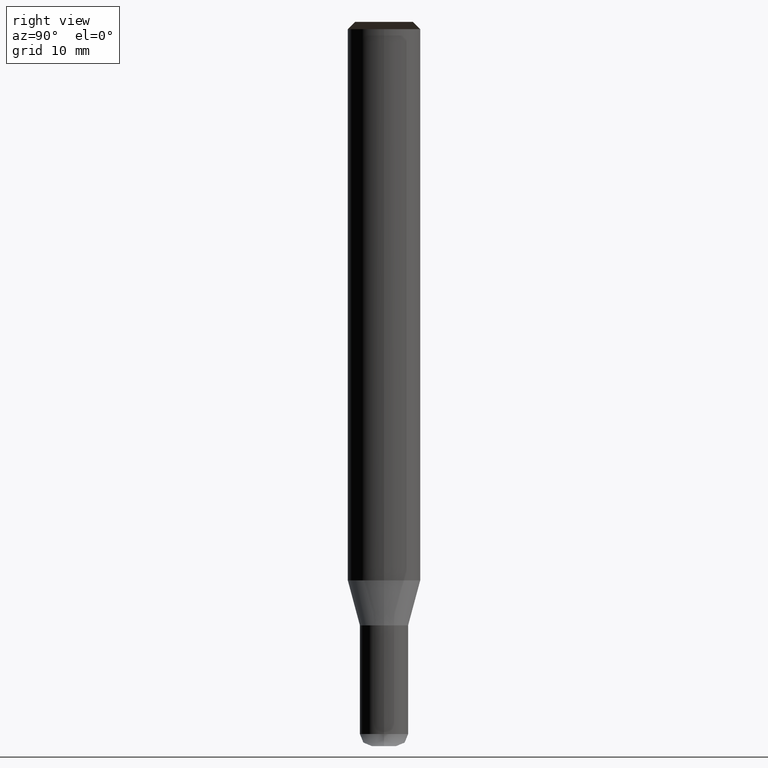
[diagram: clean part render]
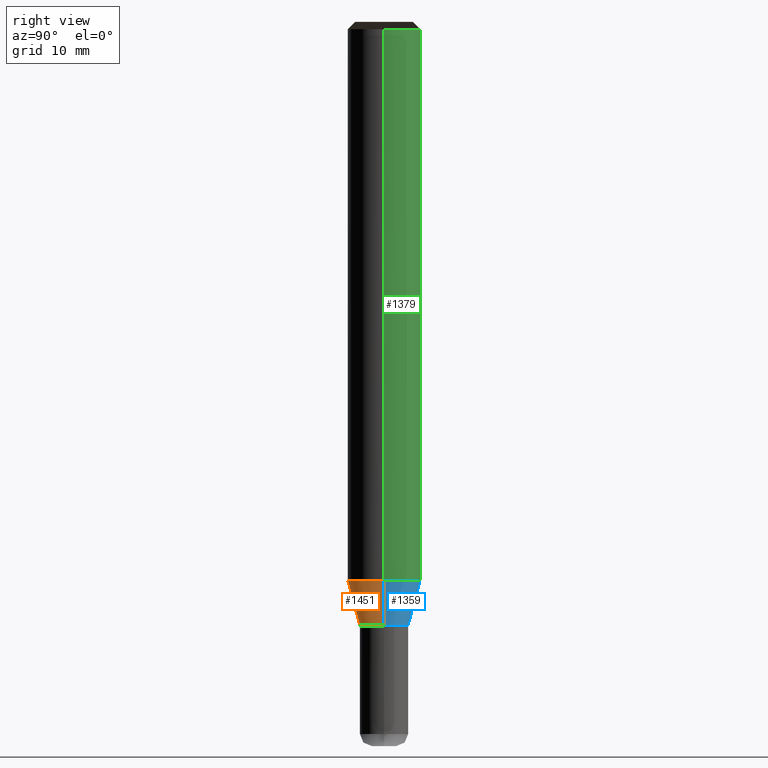
[diagram: same view with three faces highlighted in distinct colors, each labeled with its STEP entity id]
A machine part, right view with three faces highlighted in distinct colors.
Their STEP definitions:

[orange] entity #1451 — the highlighted face is a freeform B-spline surface patch.
#1118=CARTESIAN_POINT('',(2.0,0.0,-3.732050807569));
#1122=CARTESIAN_POINT('',(-2.0,0.0,-3.732050807569));
#1139=CARTESIAN_POINT('',(-2.0,-2.0,-3.732050807569));
#1140=CARTESIAN_POINT('',(0.0,-2.0,-3.732050807569));
#1141=CARTESIAN_POINT('',(2.0,-2.0,-3.732050807569));
#1142=CARTESIAN_POINT('',(3.0,0.0,0.0));
#1146=CARTESIAN_POINT('',(-3.0,0.0,0.0));
#1158=CARTESIAN_POINT('',(-3.0,-3.0,0.0));
#1159=CARTESIAN_POINT('',(0.0,-3.0,0.0));
#1160=CARTESIAN_POINT('',(3.0,-3.0,0.0));
#1432=(
BOUNDED_SURFACE()
B_SPLINE_SURFACE(1,2,(
(#1122,#1139,#1140,#1141,#1118),
(#1146,#1158,#1159,#1160,#1142)
), .UNSPECIFIED.,.F.,.F.,.F.)
B_SPLINE_SURFACE_WITH_KNOTS((2,2),(3,2,3),(
0.0,1.0),(
0.0,0.5,1.0), .UNSPECIFIED.)
GEOMETRIC_REPRESENTATION_ITEM()
RATIONAL_B_SPLINE_SURFACE(((1.0,0.707106781187,1.0,0.707106781187,1.0),
(1.0,0.707106781187,1.0,0.707106781187,1.0)
))
REPRESENTATION_ITEM('')
SURFACE()
);
#1433=(
BOUNDED_CURVE()
B_SPLINE_CURVE(1,(#1146,#1122),.UNSPECIFIED.,.F.,.F.)
B_SPLINE_CURVE_WITH_KNOTS((2,2),
(0.0,1.0),.UNSPECIFIED.)
CURVE()
GEOMETRIC_REPRESENTATION_ITEM()
RATIONAL_B_SPLINE_CURVE((1.0,1.0))
REPRESENTATION_ITEM('')
);
#1434=(
BOUNDED_CURVE()
B_SPLINE_CURVE(2,(#1122,#1139,#1140,#1141,#1118),.UNSPECIFIED.,.F.,.F.)
B_SPLINE_CURVE_WITH_KNOTS((3,2,3),
(0.0,0.5,1.0),.UNSPECIFIED.)
CURVE()
GEOMETRIC_REPRESENTATION_ITEM()
RATIONAL_B_SPLINE_CURVE((1.0,0.707106781187,1.0,0.707106781187,1.0))
REPRESENTATION_ITEM('')
);
#1435=(
BOUNDED_CURVE()
B_SPLINE_CURVE(1,(#1118,#1142),.UNSPECIFIED.,.F.,.F.)
B_SPLINE_CURVE_WITH_KNOTS((2,2),
(0.0,1.0),.UNSPECIFIED.)
CURVE()
GEOMETRIC_REPRESENTATION_ITEM()
RATIONAL_B_SPLINE_CURVE((1.0,1.0))
REPRESENTATION_ITEM('')
);
#1436=(
BOUNDED_CURVE()
B_SPLINE_CURVE(2,(#1142,#1160,#1159,#1158,#1146),.UNSPECIFIED.,.F.,.F.)
B_SPLINE_CURVE_WITH_KNOTS((3,2,3),
(0.0,0.5,1.0),.UNSPECIFIED.)
CURVE()
GEOMETRIC_REPRESENTATION_ITEM()
RATIONAL_B_SPLINE_CURVE((1.0,0.707106781187,1.0,0.707106781187,1.0))
REPRESENTATION_ITEM('')
);
#1437=VERTEX_POINT('',#1118);
#1438=VERTEX_POINT('',#1122);
#1439=VERTEX_POINT('',#1142);
#1440=VERTEX_POINT('',#1146);
#1441=EDGE_CURVE('',#1440,#1438,#1433,.T.);
#1442=EDGE_CURVE('',#1438,#1437,#1434,.T.);
#1443=EDGE_CURVE('',#1437,#1439,#1435,.T.);
#1444=EDGE_CURVE('',#1439,#1440,#1436,.T.);
#1445=ORIENTED_EDGE('',*,*,#1441,.T.);
#1446=ORIENTED_EDGE('',*,*,#1442,.T.);
#1447=ORIENTED_EDGE('',*,*,#1443,.T.);
#1448=ORIENTED_EDGE('',*,*,#1444,.T.);
#1449=EDGE_LOOP('',(#1445,#1446,#1447,#1448));
#1450=FACE_OUTER_BOUND('',#1449,.T.);
#1451=ADVANCED_FACE('',(#1450),#1432,.T.);

[blue] entity #1359 — the highlighted face is a freeform B-spline surface patch.
#1118=CARTESIAN_POINT('',(2.0,0.0,-3.732050807569));
#1119=CARTESIAN_POINT('',(2.0,2.0,-3.732050807569));
#1120=CARTESIAN_POINT('',(0.0,2.0,-3.732050807569));
#1121=CARTESIAN_POINT('',(-2.0,2.0,-3.732050807569));
#1122=CARTESIAN_POINT('',(-2.0,0.0,-3.732050807569));
#1142=CARTESIAN_POINT('',(3.0,0.0,0.0));
#1143=CARTESIAN_POINT('',(3.0,3.0,0.0));
#1144=CARTESIAN_POINT('',(0.0,3.0,0.0));
#1145=CARTESIAN_POINT('',(-3.0,3.0,0.0));
#1146=CARTESIAN_POINT('',(-3.0,0.0,0.0));
#1340=(
BOUNDED_SURFACE()
B_SPLINE_SURFACE(1,2,(
(#1118,#1119,#1120,#1121,#1122),
(#1142,#1143,#1144,#1145,#1146)
), .UNSPECIFIED.,.F.,.F.,.F.)
B_SPLINE_SURFACE_WITH_KNOTS((2,2),(3,2,3),(
0.0,1.0),(
0.0,0.5,1.0), .UNSPECIFIED.)
GEOMETRIC_REPRESENTATION_ITEM()
RATIONAL_B_SPLINE_SURFACE(((1.0,0.707106781187,1.0,0.707106781187,1.0),
(1.0,0.707106781187,1.0,0.707106781187,1.0)
))
REPRESENTATION_ITEM('')
SURFACE()
);
#1341=(
BOUNDED_CURVE()
B_SPLINE_CURVE(2,(#1142,#1143,#1144,#1145,#1146),.UNSPECIFIED.,.F.,.F.)
B_SPLINE_CURVE_WITH_KNOTS((3,2,3),
(0.0,0.5,1.0),.UNSPECIFIED.)
CURVE()
GEOMETRIC_REPRESENTATION_ITEM()
RATIONAL_B_SPLINE_CURVE((1.0,0.707106781187,1.0,0.707106781187,1.0))
REPRESENTATION_ITEM('')
);
#1342=(
BOUNDED_CURVE()
B_SPLINE_CURVE(1,(#1146,#1122),.UNSPECIFIED.,.F.,.F.)
B_SPLINE_CURVE_WITH_KNOTS((2,2),
(0.0,1.0),.UNSPECIFIED.)
CURVE()
GEOMETRIC_REPRESENTATION_ITEM()
RATIONAL_B_SPLINE_CURVE((1.0,1.0))
REPRESENTATION_ITEM('')
);
#1343=(
BOUNDED_CURVE()
B_SPLINE_CURVE(2,(#1122,#1121,#1120,#1119,#1118),.UNSPECIFIED.,.F.,.F.)
B_SPLINE_CURVE_WITH_KNOTS((3,2,3),
(0.0,0.5,1.0),.UNSPECIFIED.)
CURVE()
GEOMETRIC_REPRESENTATION_ITEM()
RATIONAL_B_SPLINE_CURVE((1.0,0.707106781187,1.0,0.707106781187,1.0))
REPRESENTATION_ITEM('')
);
#1344=(
BOUNDED_CURVE()
B_SPLINE_CURVE(1,(#1118,#1142),.UNSPECIFIED.,.F.,.F.)
B_SPLINE_CURVE_WITH_KNOTS((2,2),
(0.0,1.0),.UNSPECIFIED.)
CURVE()
GEOMETRIC_REPRESENTATION_ITEM()
RATIONAL_B_SPLINE_CURVE((1.0,1.0))
REPRESENTATION_ITEM('')
);
#1345=VERTEX_POINT('',#1118);
#1346=VERTEX_POINT('',#1122);
#1347=VERTEX_POINT('',#1142);
#1348=VERTEX_POINT('',#1146);
#1349=EDGE_CURVE('',#1347,#1348,#1341,.T.);
#1350=EDGE_CURVE('',#1348,#1346,#1342,.T.);
#1351=EDGE_CURVE('',#1346,#1345,#1343,.T.);
#1352=EDGE_CURVE('',#1345,#1347,#1344,.T.);
#1353=ORIENTED_EDGE('',*,*,#1349,.T.);
#1354=ORIENTED_EDGE('',*,*,#1350,.T.);
#1355=ORIENTED_EDGE('',*,*,#1351,.T.);
#1356=ORIENTED_EDGE('',*,*,#1352,.T.);
#1357=EDGE_LOOP('',(#1353,#1354,#1355,#1356));
#1358=FACE_OUTER_BOUND('',#1357,.T.);
#1359=ADVANCED_FACE('',(#1358),#1340,.T.);

[green] entity #1379 — the highlighted face is a freeform B-spline surface patch.
#1142=CARTESIAN_POINT('',(3.0,0.0,0.0));
#1143=CARTESIAN_POINT('',(3.0,3.0,0.0));
#1144=CARTESIAN_POINT('',(0.0,3.0,0.0));
#1145=CARTESIAN_POINT('',(-3.0,3.0,0.0));
#1146=CARTESIAN_POINT('',(-3.0,0.0,0.0));
#1147=CARTESIAN_POINT('',(3.0,0.0,45.667949192431));
#1148=CARTESIAN_POINT('',(3.0,3.0,45.667949192431));
#1149=CARTESIAN_POINT('',(0.0,3.0,45.667949192431));
#1150=CARTESIAN_POINT('',(-3.0,3.0,45.667949192431));
#1151=CARTESIAN_POINT('',(-3.0,0.0,45.667949192431));
#1360=(
BOUNDED_SURFACE()
B_SPLINE_SURFACE(1,2,(
(#1142,#1143,#1144,#1145,#1146),
(#1147,#1148,#1149,#1150,#1151)
), .UNSPECIFIED.,.F.,.F.,.F.)
B_SPLINE_SURFACE_WITH_KNOTS((2,2),(3,2,3),(
0.0,1.0),(
0.0,0.5,1.0), .UNSPECIFIED.)
GEOMETRIC_REPRESENTATION_ITEM()
RATIONAL_B_SPLINE_SURFACE(((1.0,0.707106781187,1.0,0.707106781187,1.0),
(1.0,0.707106781187,1.0,0.707106781187,1.0)
))
REPRESENTATION_ITEM('')
SURFACE()
);
#1361=(
BOUNDED_CURVE()
B_SPLINE_CURVE(2,(#1147,#1148,#1149,#1150,#1151),.UNSPECIFIED.,.F.,.F.)
B_SPLINE_CURVE_WITH_KNOTS((3,2,3),
(0.0,0.5,1.0),.UNSPECIFIED.)
CURVE()
GEOMETRIC_REPRESENTATION_ITEM()
RATIONAL_B_SPLINE_CURVE((1.0,0.707106781187,1.0,0.707106781187,1.0))
REPRESENTATION_ITEM('')
);
#1362=(
BOUNDED_CURVE()
B_SPLINE_CURVE(1,(#1151,#1146),.UNSPECIFIED.,.F.,.F.)
B_SPLINE_CURVE_WITH_KNOTS((2,2),
(0.0,1.0),.UNSPECIFIED.)
CURVE()
GEOMETRIC_REPRESENTATION_ITEM()
RATIONAL_B_SPLINE_CURVE((1.0,1.0))
REPRESENTATION_ITEM('')
);
#1363=(
BOUNDED_CURVE()
B_SPLINE_CURVE(2,(#1146,#1145,#1144,#1143,#1142),.UNSPECIFIED.,.F.,.F.)
B_SPLINE_CURVE_WITH_KNOTS((3,2,3),
(0.0,0.5,1.0),.UNSPECIFIED.)
CURVE()
GEOMETRIC_REPRESENTATION_ITEM()
RATIONAL_B_SPLINE_CURVE((1.0,0.707106781187,1.0,0.707106781187,1.0))
REPRESENTATION_ITEM('')
);
#1364=(
BOUNDED_CURVE()
B_SPLINE_CURVE(1,(#1142,#1147),.UNSPECIFIED.,.F.,.F.)
B_SPLINE_CURVE_WITH_KNOTS((2,2),
(0.0,1.0),.UNSPECIFIED.)
CURVE()
GEOMETRIC_REPRESENTATION_ITEM()
RATIONAL_B_SPLINE_CURVE((1.0,1.0))
REPRESENTATION_ITEM('')
);
#1365=VERTEX_POINT('',#1142);
#1366=VERTEX_POINT('',#1146);
#1367=VERTEX_POINT('',#1147);
#1368=VERTEX_POINT('',#1151);
#1369=EDGE_CURVE('',#1367,#1368,#1361,.T.);
#1370=EDGE_CURVE('',#1368,#1366,#1362,.T.);
#1371=EDGE_CURVE('',#1366,#1365,#1363,.T.);
#1372=EDGE_CURVE('',#1365,#1367,#1364,.T.);
#1373=ORIENTED_EDGE('',*,*,#1369,.T.);
#1374=ORIENTED_EDGE('',*,*,#1370,.T.);
#1375=ORIENTED_EDGE('',*,*,#1371,.T.);
#1376=ORIENTED_EDGE('',*,*,#1372,.T.);
#1377=EDGE_LOOP('',(#1373,#1374,#1375,#1376));
#1378=FACE_OUTER_BOUND('',#1377,.T.);
#1379=ADVANCED_FACE('',(#1378),#1360,.T.);